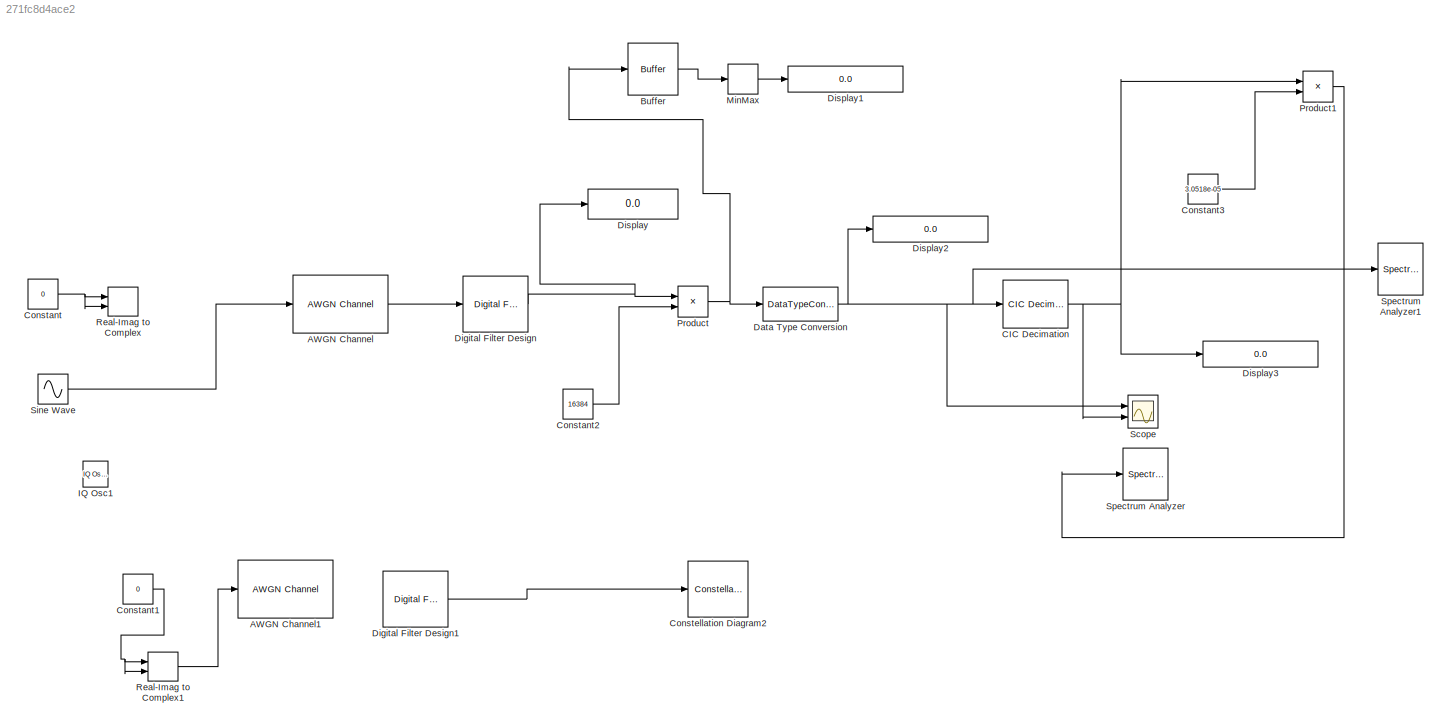
MODEL slx_271fc8d4ace2
KIND model
BLOCK [Reference] AWGN Channel  REF=commchan3/AWGN
Channel
  EbNodB = 10
  EsNodB = 10
  InputProcessing = Columns as channels (frame based)
  Ports = [1, 1]
  Ps = 1
  SNRdB = 0
  SourceBlock = commchan3/AWGN\nChannel
  SourceType = AWGN Channel
  Tsym = 1
  UserDataPersistent = on
  bitsPerSym = 1
  noiseMode = Signal to noise ratio  (SNR)
  seed = 67
  variance = 1
BLOCK [Reference] AWGN Channel1  REF=commchan3/AWGN
Channel
  Commented = on
  EbNodB = 10
  EsNodB = 10
  InputProcessing = Columns as channels (frame based)
  Ports = [1, 1]
  Ps = 1
  SNRdB = -10
  SourceBlock = commchan3/AWGN\nChannel
  SourceType = AWGN Channel
  Tsym = 1
  UserDataPersistent = on
  bitsPerSym = 1
  noiseMode = Signal to noise ratio  (SNR)
  seed = 67
  variance = 1
BLOCK [Buffer] Buffer
  N = 16384
  TreatMby1Signals = One channel
BLOCK [Reference] CIC Decimation  REF=dspmlti4/CIC
Decimation
  BPS = [16 16 16 16]
  FLPS = 0
  M = 1
  N = 9
  Ports = [1, 1]
  R = 9
  RateOptions = Allow multirate processing
  SourceBlock = dspmlti4/CIC\nDecimation
  SourceType = CIC Decimation
  UserDataPersistent = on
  filtFrom = Dialog
  filterInternals = Minimum section word lengths
  filtobj = Hm_decim
  framing = Maintain input frame rate
  ftype = Decimator
  launchFVT = off
  outputFracLength = 0
  outputWordLength = 32
BLOCK [Constant] Constant
  SampleTime = 1/250E6
  Value = 0
BLOCK [Constant] Constant1
  Commented = on
  SampleTime = 1/125E3
  Value = 0
BLOCK [Constant] Constant2
  Value = 16384
BLOCK [Constant] Constant3
  Value = 3.0518e-05
BLOCK [ConstellationDiagram] Constellation Diagram2
  Commented = on
  Ports = [1]
  ScopeSpecificationString = comm.scopes.ConstellationDiagramBlockCfg('CurrentConfiguration', extmgr.ConfigurationSet(extmgr.Configuration('Core','General UI',true),extmgr.Configuration('Core','Source UI',true),extmgr.Configuration('Sources','WiredSimulink',true),extmgr.Configuration('Sources','Simulink',false),extmgr.Configuration('Sources','File',false),extmgr.Configuration('Sources','Workspace',false),extmgr.Configuration(...<+1688ch>
BLOCK [DataTypeConversion] Data Type Conversion
  OutDataTypeStr = int16
  RndMeth = Floor
  SaturateOnIntegerOverflow = off
BLOCK [Reference] Digital Filter Design  REF=dsparch4/Digital
Filter Design
  Ports = [1, 1]
  SourceBlock = dsparch4/Digital\nFilter Design
  SourceType = Digital Filter Design
  UserDataPersistent = on
  mwdsp_browser_bugfix_var = off
BLOCK [Reference] Digital Filter Design1  REF=dsparch4/Digital
Filter Design
  Commented = on
  Ports = [1, 1]
  SourceBlock = dsparch4/Digital\nFilter Design
  SourceType = Digital Filter Design
  UserDataPersistent = on
  mwdsp_browser_bugfix_var = off
BLOCK [Display] Display
  Decimation = 1
  Ports = [1]
BLOCK [Display] Display1
  Decimation = 1
  Format = long
  Ports = [1]
BLOCK [Display] Display2
  Decimation = 1
  Format = long
  Ports = [1]
BLOCK [Display] Display3
  Decimation = 1
  Format = long
  Ports = [1]
BLOCK [Reference] IQ Osc1  REF=siglabs_lib/IQ Osc1
  Freq = 1.025E6 * 2 * pi
  Ports = [0, 1]
  SampleTime = 1/250E6
  SourceBlock = siglabs_lib/IQ Osc1
BLOCK [MinMax] MinMax
  Function = max
  InputSameDT = off
  Ports = [1, 1]
  SaturateOnIntegerOverflow = off
BLOCK [Product] Product
  InputSameDT = off
  OutDataTypeStr = Inherit: Inherit via internal rule
  Ports = [2, 1]
  RndMeth = Floor
  SaturateOnIntegerOverflow = off
BLOCK [Product] Product1
  InputSameDT = off
  OutDataTypeStr = Inherit: Inherit via internal rule
  Ports = [2, 1]
  RndMeth = Floor
  SaturateOnIntegerOverflow = off
BLOCK [RealImagToComplex] Real-Imag to Complex
  Ports = [2, 1]
BLOCK [RealImagToComplex] Real-Imag to Complex1
  Commented = on
  Ports = [2, 1]
BLOCK [Scope] Scope
  Floating = off
  LimitDataPoints = off
  NumInputPorts = 2
  Ports = [2]
  ShowLegends = off
  TimeRange = 0.0005
  YMax = 30000~8e+12
  YMin = -30000~-8e+12
BLOCK [Sin] Sine Wave
  Amplitude = 0.5
  Frequency = 1.025E6
  Ports = [0, 1]
  SampleTime = 1/250E6
BLOCK [SpectrumAnalyzer] Spectrum Analyzer
  Ports = [1]
  ScopeSpecificationString = spbscopes.SpectrumAnalyzerBlockCfg('CurrentConfiguration', extmgr.ConfigurationSet(extmgr.Configuration('Core','General UI',true),extmgr.Configuration('Core','Source UI',true),extmgr.Configuration('Sources','WiredSimulink',true),extmgr.Configuration('Visuals','Spectrum',true,'AxesProperties',struct('Color',[0 0 0],'XColor',[0.686274509803922 0.686274509803922 0.686274509803922],'YColor',[0.6862745...<+5978ch>
BLOCK [SpectrumAnalyzer] Spectrum Analyzer1
  Ports = [1]
  ScopeSpecificationString = spbscopes.SpectrumAnalyzerBlockCfg('CurrentConfiguration', extmgr.ConfigurationSet(extmgr.Configuration('Core','General UI',true),extmgr.Configuration('Core','Source UI',true),extmgr.Configuration('Sources','WiredSimulink',true),extmgr.Configuration('Sources','Simulink',false),extmgr.Configuration('Sources','File',false),extmgr.Configuration('Sources','Workspace',false),extmgr.Configuration('Sourc...<+6981ch>
LINE AWGN Channel:1 -> Digital Filter Design:1
LINE Buffer:1 -> MinMax:1
NET CIC Decimation:1 -> Display3:1, Product1:1, Scope:2
NET Constant1:1 -> Real-Imag to Complex1:1, Real-Imag to Complex1:2
LINE Constant2:1 -> Product:2
LINE Constant3:1 -> Product1:2
NET Constant:1 -> Real-Imag to Complex:1, Real-Imag to Complex:2
NET Data Type Conversion:1 -> CIC Decimation:1, Display2:1, Scope:1, Spectrum Analyzer1:1
LINE Digital Filter Design1:1 -> Constellation Diagram2:1
NET Digital Filter Design:1 -> Display:1, Product:1
LINE MinMax:1 -> Display1:1
LINE Product1:1 -> Spectrum Analyzer:1
NET Product:1 -> Buffer:1, Data Type Conversion:1
LINE Real-Imag to Complex1:1 -> AWGN Channel1:1
LINE Sine Wave:1 -> AWGN Channel:1
note: NET lines group one-source signal fan-out (src -> all destinations, sorted); 1:1 wires keep LINE
